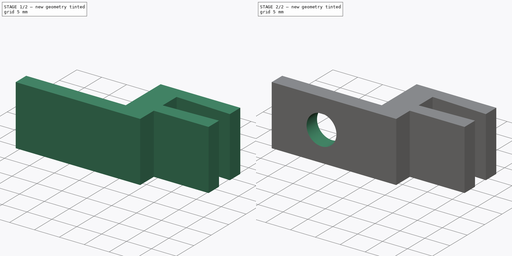
[diagram: build sequence overview — one tinted view per stage of 2, left to right]
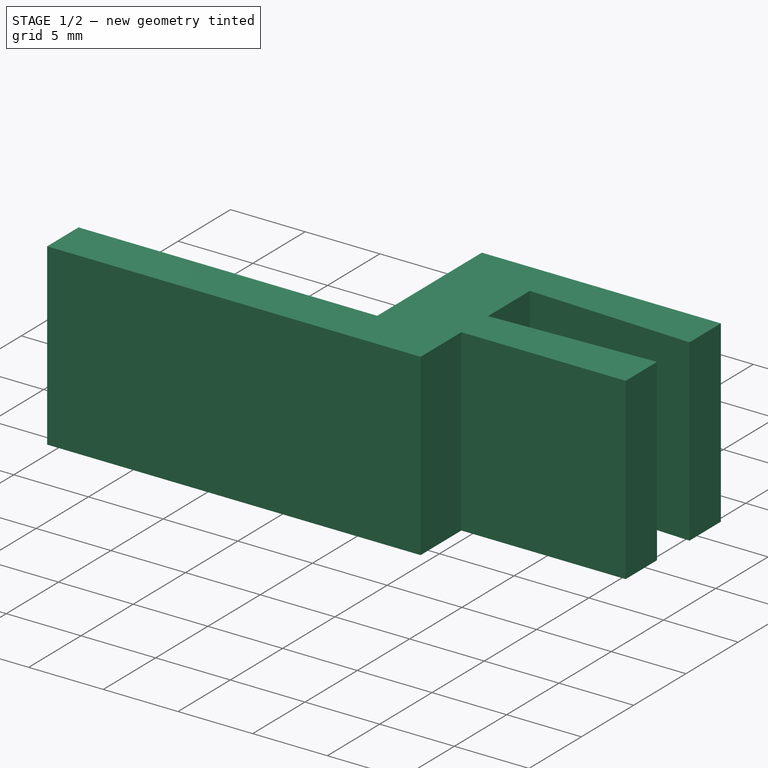
[diagram: stage 1 of 2 — iso view after this stage's code; geometry added in this stage tinted green]
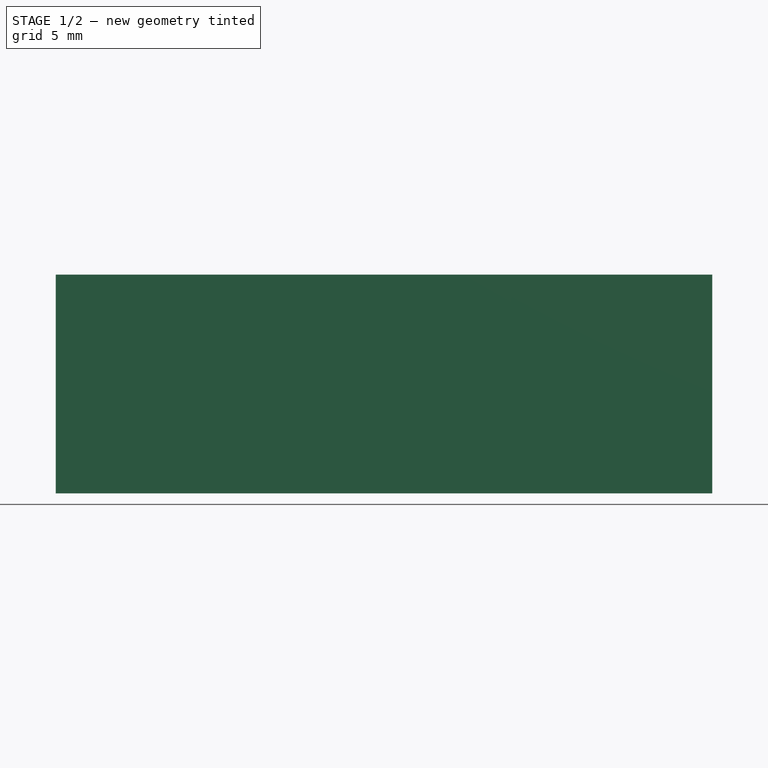
[diagram: stage 1 of 2 — front view after this stage's code; geometry added in this stage tinted green]
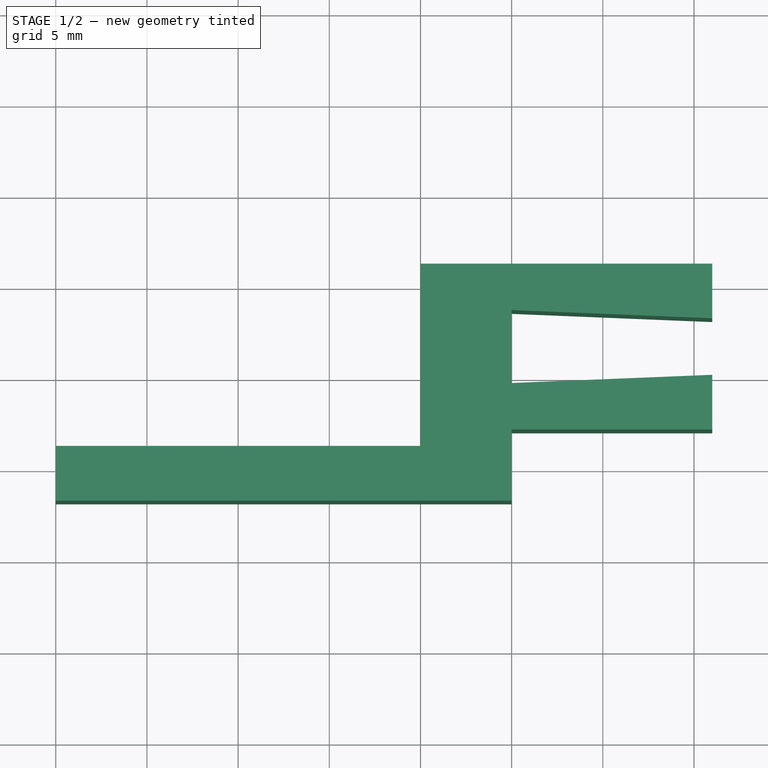
[diagram: stage 1 of 2 — top view after this stage's code; geometry added in this stage tinted green]
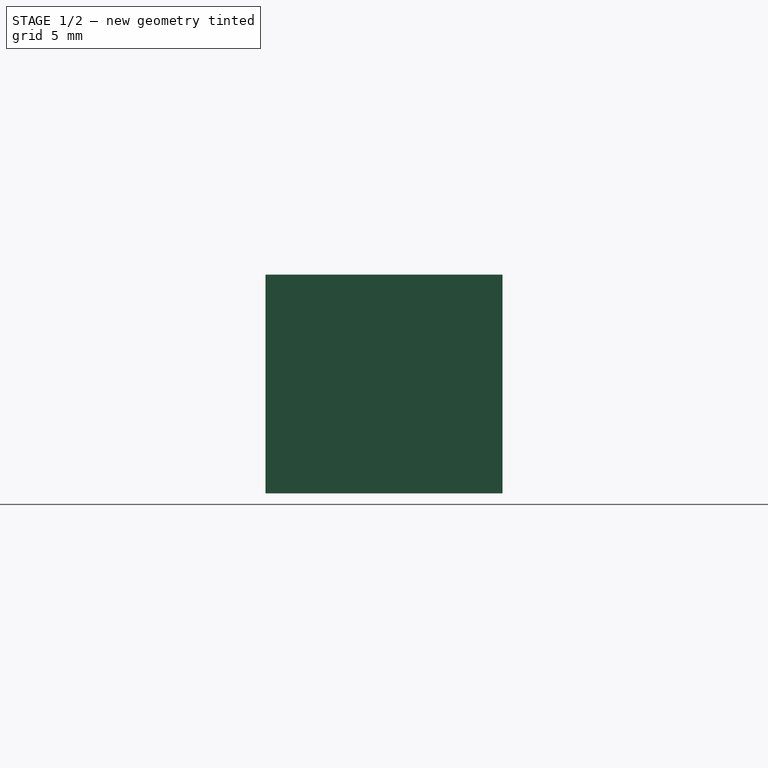
[diagram: stage 1 of 2 — right view after this stage's code; geometry added in this stage tinted green]
FCSTD DOCUMENT  (FreeCAD 0.18R16110 (Git))
Label: clipsMatrix
License: All rights reserved
LicenseURL: http://en.wikipedia.org/wiki/All_rights_reserved
objects: Sketcher::SketchObject×2, PartDesign::Pad×1, PartDesign::Hole×1, PartDesign::Body×1
note: 7 computed .brp shape members not serialized (recipe doc carries the construction recipe); baked Part::Feature solids carry a one-line shape summary decoded from their .brp

FEATURE [Sketcher::SketchObject] Sketch
  MapMode = 5
  Support = -> [XY_Plane]
  sketch-geometry (16):
    g0: LineSegment StartX=-20 StartY=-11.8056 StartZ=0 EndX=5 EndY=-11.8056 EndZ=0
    g1: LineSegment StartX=5 StartY=-11.8056 StartZ=0 EndX=5 EndY=-7.90555 EndZ=0
    g2: LineSegment StartX=5 StartY=1.19445 StartZ=0 EndX=0 EndY=1.19445 EndZ=0
    g3: LineSegment StartX=0 StartY=1.19445 StartZ=0 EndX=0 EndY=-8.80555 EndZ=0
    g4: LineSegment StartX=0 StartY=-8.80555 StartZ=0 EndX=-20 EndY=-8.80555 EndZ=0
    g5: LineSegment StartX=-20 StartY=-8.80555 StartZ=0 EndX=-20 EndY=-11.8056 EndZ=0
    g6: LineSegment StartX=5 StartY=1.19445 StartZ=0 EndX=16 EndY=1.19445 EndZ=0
    g7: LineSegment StartX=16 StartY=1.19445 StartZ=0 EndX=16 EndY=-1.80555 EndZ=0
    g8: LineSegment StartX=16 StartY=-1.80555 StartZ=0 EndX=5 EndY=-1.35555 EndZ=0
    g9: LineSegment StartX=5 StartY=-5.35555 StartZ=0 EndX=16 EndY=-4.90555 EndZ=0
    g10: LineSegment StartX=16 StartY=-4.90555 StartZ=0 EndX=16 EndY=-7.90555 EndZ=0
    g11: LineSegment StartX=16 StartY=-7.90555 StartZ=0 EndX=5 EndY=-7.90555 EndZ=0
    g12: LineSegment StartX=5 StartY=-5.35555 StartZ=0 EndX=5 EndY=-1.35555 EndZ=0
    g13: LineSegment [constr] StartX=16 StartY=5.9455 StartZ=0 EndX=16 EndY=-17.8005 EndZ=0
    g14: LineSegment [constr] StartX=1.10584 StartY=-3.35555 StartZ=0 EndX=32.7945 EndY=-3.35555 EndZ=0
    g15: LineSegment [constr] StartX=5 StartY=1.19445 StartZ=0 EndX=5 EndY=-17.8224 EndZ=0
  constraints (41):
    c: Horizontal(g0)
    c: Coincident(g0,g1)
    c: Vertical(g1)
    c: Horizontal(g2)
    c: Coincident(g2,g3)
    c: Vertical(g3)
    c: Coincident(g3,g4)
    c: Horizontal(g4)
    c: Coincident(g4,g5)
    c: Coincident(g5,g0)
    c: Vertical(g5)
    c: DistanceX(g4,g4) = 20
    c: DistanceY(g3,g3) = 10
    c: DistanceY(g5,g5) = 3
    c: DistanceX(g2,g2) = 5
    c: PointOnObject(g3,g-2)
    c: Coincident(g2,g6)
    c: Horizontal(g6)
    c: Coincident(g6,g7)
    c: Vertical(g7)
    c: Coincident(g7,g8)
    c: Coincident(g12,g8)
    c: DistanceY(g7,g7) = 3
    c: Coincident(g9,g10)
    c: Coincident(g10,g11)
    c: Vertical(g10)
    c: DistanceY(g10,g10) = 3
    c: Coincident(g12,g9)
    c: Tangent(g1,g12)
    c: Horizontal(g11)
    c: DistanceY(g12,g12) = 4
    c: DistanceY(g9,g7) = 3.1
    c: Vertical(g13)
    c: PointOnObject(g6,g13)
    c: Symmetric(g7,g9,g14)
    c: Symmetric(g8,g9,g14)
    c: DistanceX(g11,g11) = 11
    c: Coincident(g15,g2)
    c: Vertical(g15)
    c: PointOnObject(g8,g15)
    c: Coincident(g1,g11)
FEATURE [PartDesign::Pad] Pad
  Length = 12
  Length2 = 100
  Profile = -> Sketch
  Type = 0
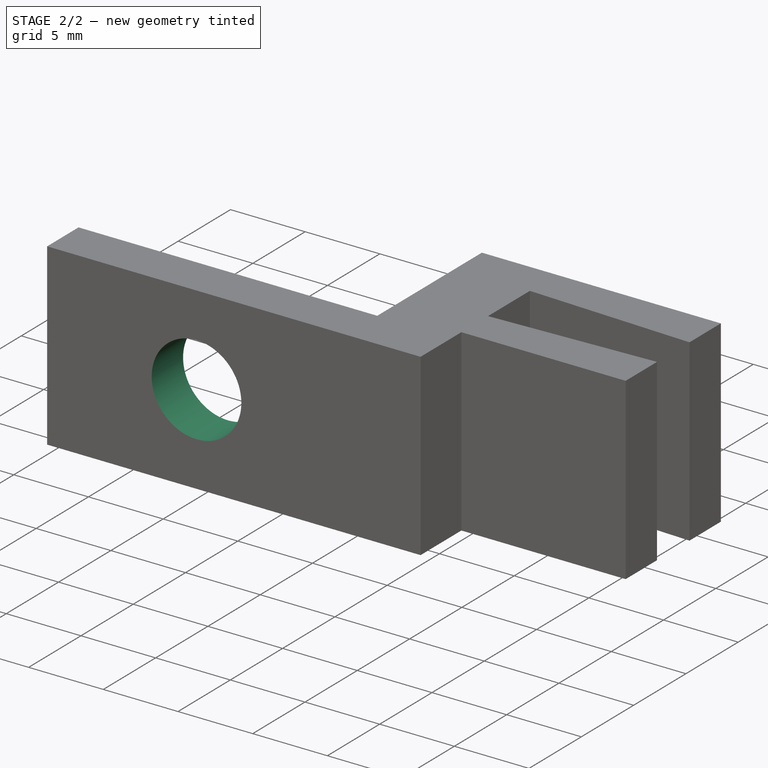
[diagram: stage 2 of 2 — iso view after this stage's code; geometry added in this stage tinted green]
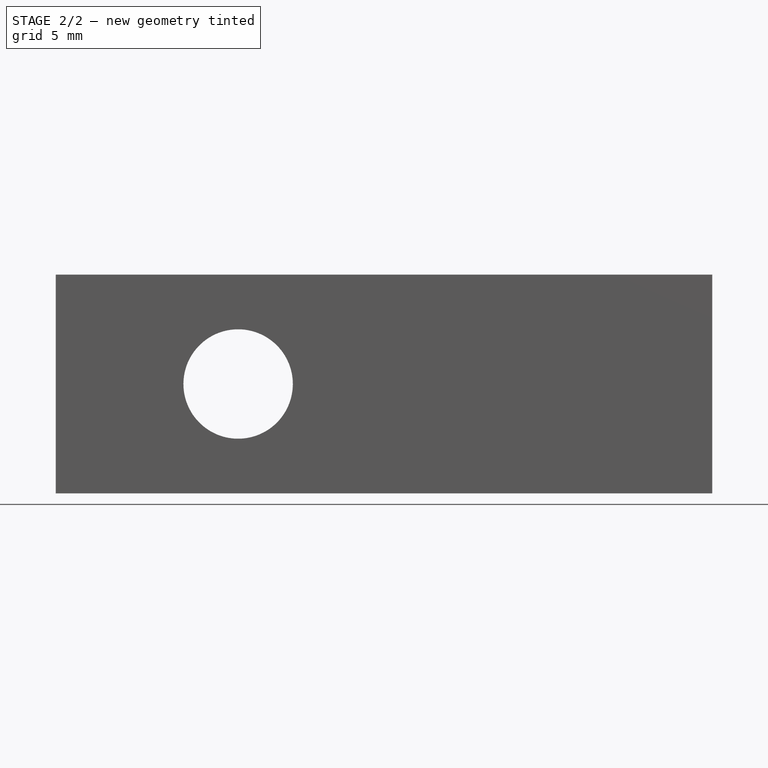
[diagram: stage 2 of 2 — front view after this stage's code; geometry added in this stage tinted green]
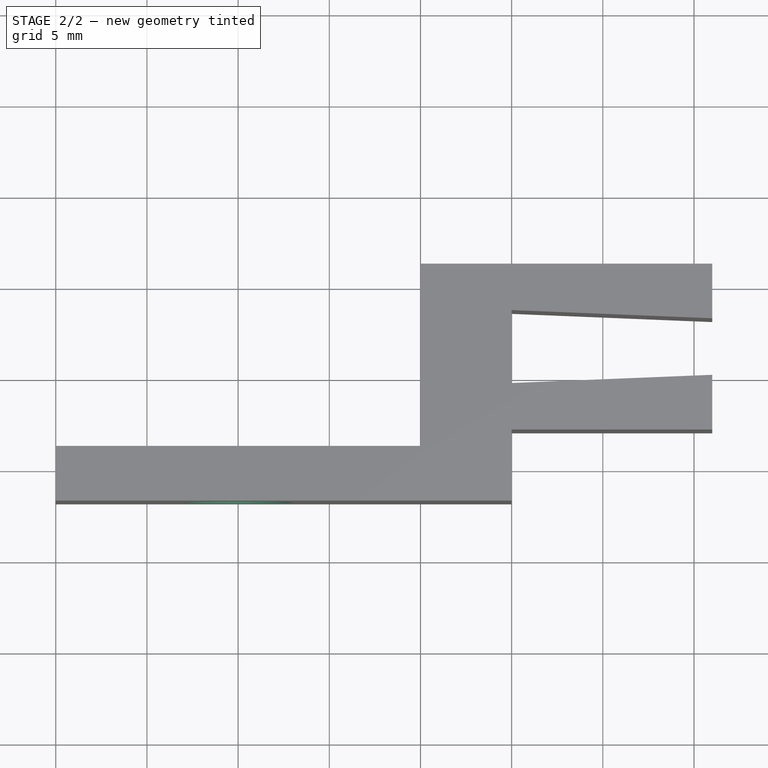
[diagram: stage 2 of 2 — top view after this stage's code; geometry added in this stage tinted green]
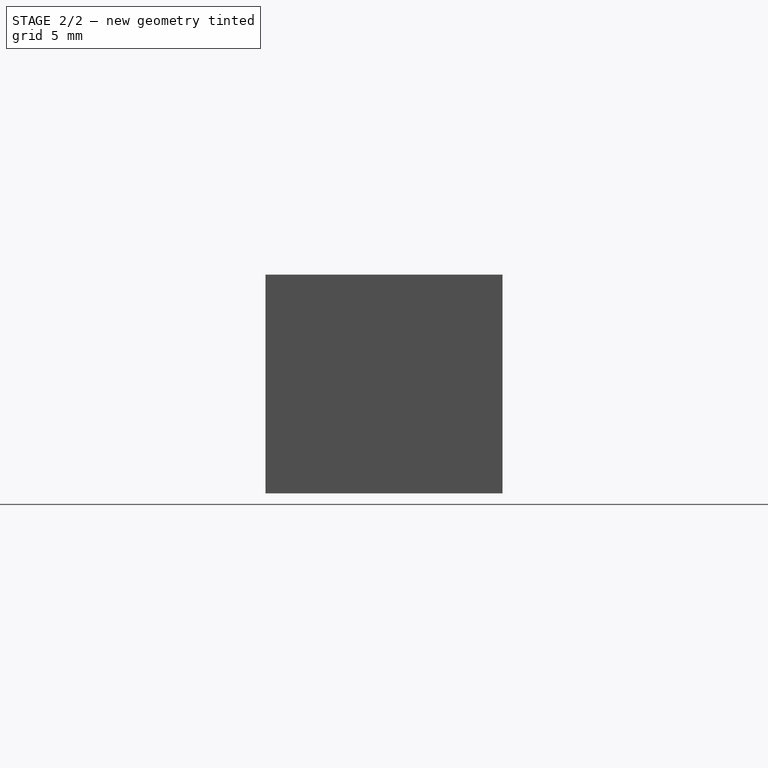
[diagram: stage 2 of 2 — right view after this stage's code; geometry added in this stage tinted green]
FEATURE [Sketcher::SketchObject] Sketch001
  ExternalGeometry = -> [Sketch]
  MapMode = 5
  Placement = pos=(0,-11.8056,0) rot=(1,0,0;1.5708rad)
  Support = -> [Pad]
  sketch-geometry (3):
    g0: Circle CenterX=-10 CenterY=6 CenterZ=0 NormalX=0 NormalY=0 NormalZ=1 AngleXU=0 Radius=1.75
    g1: LineSegment [constr] StartX=0 StartY=13.5632 StartZ=0 EndX=0 EndY=-1.69351 EndZ=0
    g2: LineSegment [constr] StartX=-14.5259 StartY=0 StartZ=0 EndX=-7.5133 EndY=0 EndZ=0
  constraints (3):
    c: Diameter(g0) = 3.5
    c: DistanceY(g2,g0) = 6
    c: DistanceX(g0,g1) = 10
FEATURE [PartDesign::Hole] Hole
  BaseFeature = -> Pad
  Depth = 25
  DepthType = 0
  Diameter = 6
  DrillPoint = 1
  DrillPointAngle = 118
  HoleCutCountersinkAngle = 90
  HoleCutDepth = 0
  HoleCutDiameter = 0
  HoleCutType = 0
  ModelActualThread = false
  Profile = -> Sketch001
  Tapered = false
  TaperedAngle = 90
  ThreadAngle = 0
  ThreadClass = 0
  ThreadCutOffInner = 0
  ThreadCutOffOuter = 0
  ThreadDirection = 0
  ThreadFit = 0
  ThreadPitch = 0
  ThreadSize = 0
  ThreadType = 0
  Threaded = false
FEATURE [PartDesign::Body] Body
  Group = -> [Sketch,Sketch001,Pad,Hole]
  Origin = -> Origin
  Tip = -> Hole
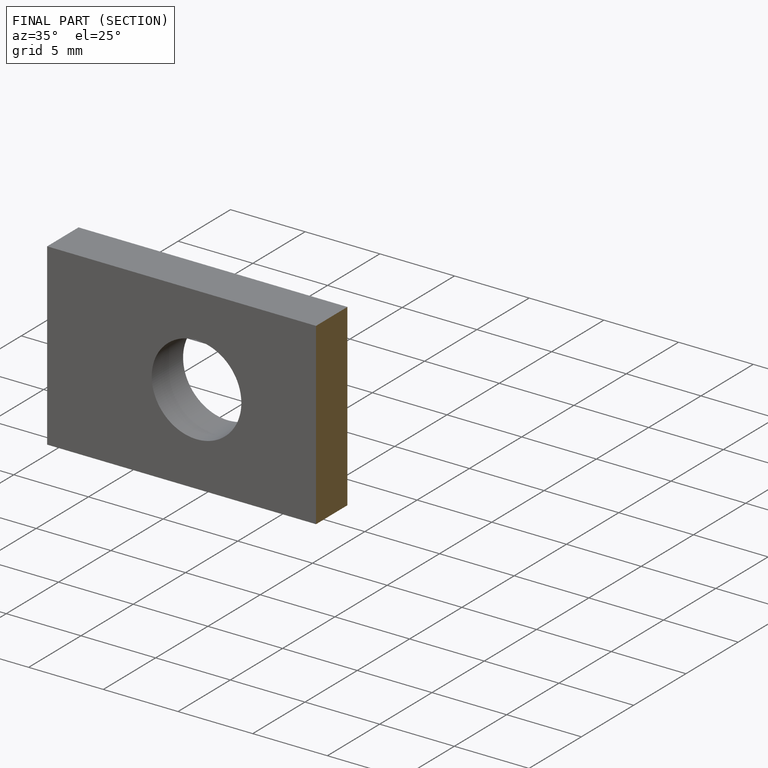
[diagram: finished part — half-section view (interior)]
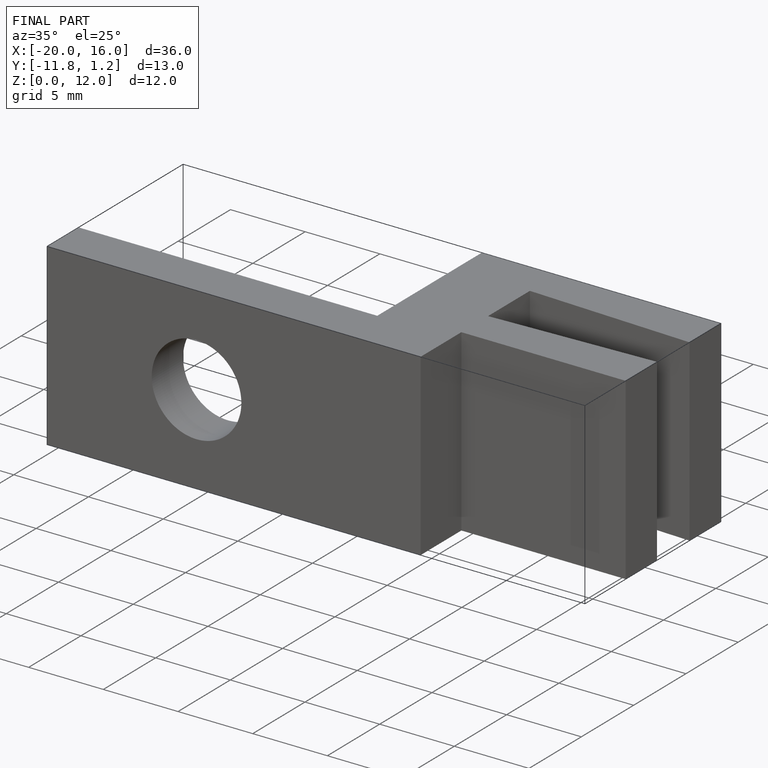
[diagram: finished part — iso view with bounding-box wireframe]
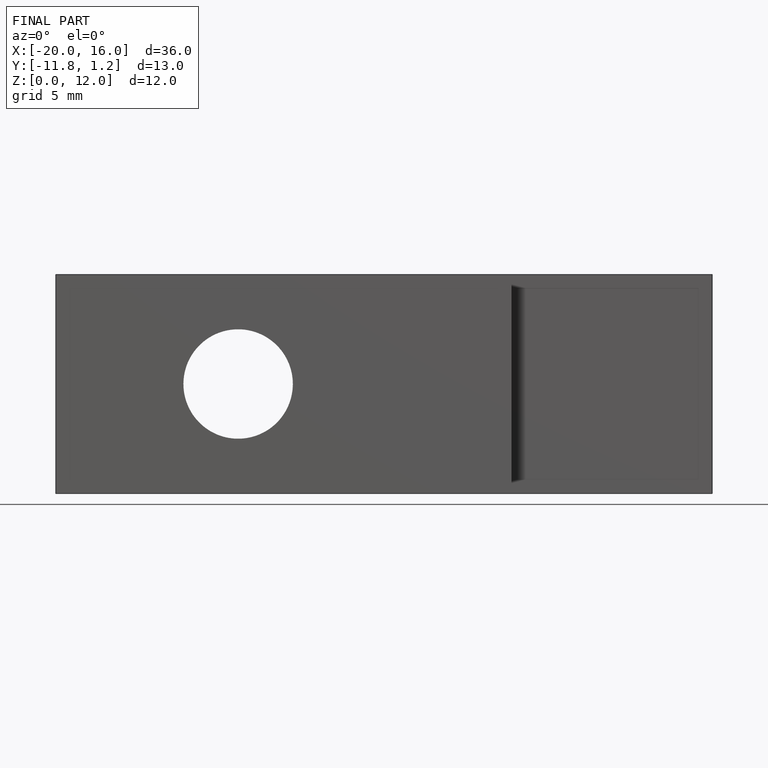
[diagram: finished part — front view with bounding-box wireframe]
